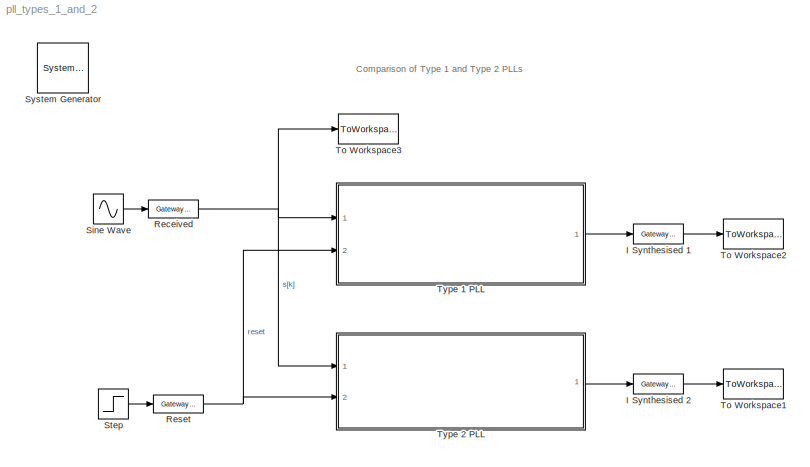
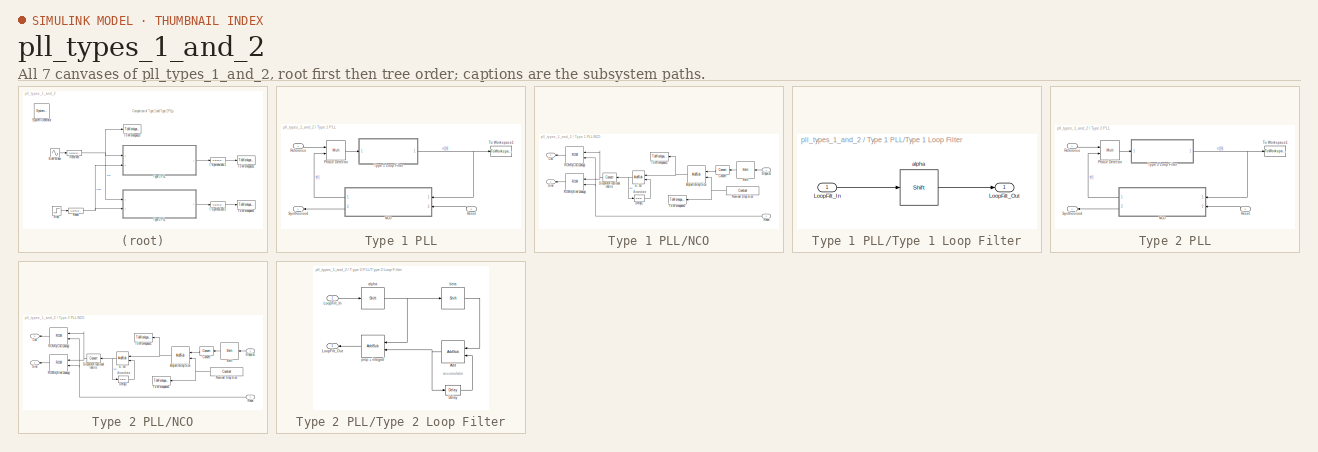
[diagram: thumbnail index - all 7 canvases of the model, root first then tree order]
MODEL pll_types_1_and_2
KIND model
CONFIG PreLoadFcn = Fs = 1000;
CONFIG StopFcn = figure(9)\nsubplot(2,1,1)\nhold off\nplot(Vss1,'r');\nhold on\nplot(Vss_nom1,'b');\nlegend('Adj. SS (Type 1)', 'Centre SS (Type 1)',1);\naxis([0 10000 35 40]);\nsubplot(2,1,2)\nhold off\nplot(Vss2,'r');\nhold on\nplot(Vss_nom2,'b');\nlegend('Adj. SS (Type 2)', 'Centre SS (Type 2)',1);\naxis([0 10000 35 40]);\n\ndoFFTplot(Fs, [Vsyn1(round(length(Vsyn1)*0.5):end), Verr1(round(length(Verr1)*0.5):end)...<+751ch>
BLOCK [Reference]  System Generator  REF=xbsIndex_r4/ System Generator
  AttributesFormatString = System\\nGenerator
  FunctionWithSeparateData = off
  Ports = []
  RTWMemSecDataConstants = Inherit from model
  RTWMemSecDataInternal = Inherit from model
  RTWMemSecDataParameters = Inherit from model
  RTWMemSecFuncExecute = Inherit from model
  RTWMemSecFuncInitTerm = Inherit from model
  ShowPortLabels = FromPortIcon
  SourceBlock = xbsIndex_r4/ System Generator
  SourceType = Xilinx System Generator Block
  SystemSampleTime = -1
  Tag = genX
  UserData = DataTag0
  UserDataPersistent = on
  block_type = sysgen
  block_version = 9.2.01
  clock_wrapper = Clock Enables
  core_generation = According to Block Masks
  dbl_ovrd = According to Block Masks
  dcm_input_clock_period = 100
  deprecated_control = off
  directory = ./netlist
  eval_field = 0
  has_advanced_control = 0
  incr_netlist = off
  infoedit = System Generator
  package = ff668
  part = xc4vsx35
  run_coregen = off
  sg_icon_stat = 51,50,-1,-1,red,beige,0,07734
  sg_mask_display = fprintf('','COMMENT: begin icon graphics');\npatch([0 51 51 0 ],[0 0 50 50 ],[0.93 0.92 0.86]);\npatch([12 4 16 4 12 25 29 33 47 36 25 17 29 17 25 36 47 33 29 25 12 ],[5 13 25 37 45 45 41 45 45 34 45 37 25 13 5 16 5 5 9 5 5 ],[0.6 0.2 0.25]);\nplot([0 0 51 51 0 ],[0 50 50 0 0 ]);\nfprintf('','COMMENT: end icon graphics');\nfprintf('','COMMENT: begin icon text');\nfprintf('','COMMENT: end icon text...<+5ch>
  sggui_pos = -1,-1,-1,-1
  simulink_period = 1/Fs
  speed = -10
  synthesis_tool = XST
  sysclk_period = 10
  testbench = off
  trim_vbits = Everywhere in SubSystem
  xilinxfamily = virtex4
BLOCK [Reference] I Synthesised 1  REF=xbsIndex_r4/Gateway Out
  LOCs = {}
  Ports = [1, 1]
  SourceBlock = xbsIndex_r4/Gateway Out
  SourceType = Xilinx Gateway Out Block
  block_type = gatewayout
  block_version = 9.2.01
  has_advanced_control = 0
  hdl_port = on
  infoedit = Gateway out block.  Converts Xilinx fixed point inputs into ouputs of type Simulink integer, double, or fixed point.<P><P>Hardware notes:  In hardware these blocks become top level output ports or are discarded, depending on how they are configured.
  locs_specified = off
  sg_icon_stat = 50,20,1,1,white,yellow,0,38220381,right
  sg_mask_display = fprintf('','COMMENT: begin icon graphics');\npatch([0 50 50 0 ],[0 0 20 20 ],[0.95 0.93 0.65]);\npatch([19 16 21 16 19 24 25 26 32 28 24 21 26 21 24 28 32 26 25 24 19 ],[2 5 10 15 18 18 17 18 18 14 18 15 10 5 2 6 2 2 3 2 2 ],[0.98 0.96 0.92]);\nplot([0 50 50 0 0 ],[0 0 20 20 0 ]);\nfprintf('','COMMENT: end icon graphics');\nfprintf('','COMMENT: begin icon text');\ncolor('black');port_label('input'...<+132ch>
  sggui_pos = 20,20,336,386
  timing_constraint = None
  xl_area = [0,0,0,0,0,0,0]
  xl_use_area = off
BLOCK [Reference] I Synthesised 2  REF=xbsIndex_r4/Gateway Out
  LOCs = {}
  Ports = [1, 1]
  SourceBlock = xbsIndex_r4/Gateway Out
  SourceType = Xilinx Gateway Out Block
  block_type = gatewayout
  block_version = 9.2.01
  has_advanced_control = 0
  hdl_port = on
  infoedit = Gateway out block.  Converts Xilinx fixed point inputs into ouputs of type Simulink integer, double, or fixed point.<P><P>Hardware notes:  In hardware these blocks become top level output ports or are discarded, depending on how they are configured.
  locs_specified = off
  sg_icon_stat = 50,20,1,1,white,yellow,0,38220381,right
  sg_mask_display = fprintf('','COMMENT: begin icon graphics');\npatch([0 50 50 0 ],[0 0 20 20 ],[0.95 0.93 0.65]);\npatch([19 16 21 16 19 24 25 26 32 28 24 21 26 21 24 28 32 26 25 24 19 ],[2 5 10 15 18 18 17 18 18 14 18 15 10 5 2 6 2 2 3 2 2 ],[0.98 0.96 0.92]);\nplot([0 50 50 0 0 ],[0 0 20 20 0 ]);\nfprintf('','COMMENT: end icon graphics');\nfprintf('','COMMENT: begin icon text');\ncolor('black');port_label('input'...<+132ch>
  sggui_pos = 20,20,336,386
  timing_constraint = None
  xl_area = [0,0,0,0,0,0,0]
  xl_use_area = off
BLOCK [Reference] Received  REF=xbsIndex_r4/Gateway In
  LOCs = {}
  Ports = [1, 1]
  SourceBlock = xbsIndex_r4/Gateway In
  SourceType = Xilinx Gateway In Block
  arith_type = Signed  (2's comp)
  bin_pt = 14
  block_type = gatewayin
  block_version = 9.2.01
  dbl_ovrd = off
  has_advanced_control = 0
  infoedit = Gateway in block.  Converts inputs of type Simulink integer, double and fixed point to  Xilinx fixed point type.<P><P>Hardware notes:  In hardware these blocks become top level input ports.
  locs_specified = off
  n_bits = 16
  overflow = Saturate
  period = 1/Fs
  quantization = Round  (unbiased: +/- Inf)
  sg_icon_stat = 50,18,1,1,white,yellow,0,bc55d28f,right
  sg_mask_display = fprintf('','COMMENT: begin icon graphics');\npatch([0 65 65 0 ],[0 0 20 20 ],[0.95 0.93 0.65]);\npatch([27 24 29 24 27 32 33 34 40 36 32 29 34 29 32 36 40 34 33 32 27 ],[2 5 10 15 18 18 17 18 18 14 18 15 10 5 2 6 2 2 3 2 2 ],[0.98 0.96 0.92]);\nplot([0 65 65 0 0 ],[0 0 20 20 0 ]);\nfprintf('','COMMENT: end icon graphics');\nfprintf('','COMMENT: begin icon text');\ncolor('black');port_label('input'...<+131ch>
  sggui_pos = 20,20,348,406
  timing_constraint = None
  xl_area = [0,0,0,0,0,0,0]
  xl_use_area = off
BLOCK [Reference] Reset  REF=xbsIndex_r4/Gateway In
  LOCs = {}
  Ports = [1, 1]
  SourceBlock = xbsIndex_r4/Gateway In
  SourceType = Xilinx Gateway In Block
  arith_type = Boolean
  bin_pt = 14
  block_type = gatewayin
  block_version = 9.2.01
  dbl_ovrd = off
  has_advanced_control = 0
  infoedit = Gateway in block.  Converts inputs of type Simulink integer, double and fixed point to  Xilinx fixed point type.<P><P>Hardware notes:  In hardware these blocks become top level input ports.
  locs_specified = off
  n_bits = 16
  overflow = Saturate
  period = 1/Fs
  quantization = Round  (unbiased: +/- Inf)
  sg_icon_stat = 50,18,1,1,white,yellow,0,bc55d28f,right
  sg_mask_display = fprintf('','COMMENT: begin icon graphics');\npatch([0 65 65 0 ],[0 0 20 20 ],[0.95 0.93 0.65]);\npatch([27 24 29 24 27 32 33 34 40 36 32 29 34 29 32 36 40 34 33 32 27 ],[2 5 10 15 18 18 17 18 18 14 18 15 10 5 2 6 2 2 3 2 2 ],[0.98 0.96 0.92]);\nplot([0 65 65 0 0 ],[0 0 20 20 0 ]);\nfprintf('','COMMENT: end icon graphics');\nfprintf('','COMMENT: begin icon text');\ncolor('black');port_label('input'...<+131ch>
  sggui_pos = 20,20,348,406
  timing_constraint = None
  xl_area = [0,0,0,0,0,0,0]
  xl_use_area = off
BLOCK [Sin] Sine Wave
  Frequency = 2*pi*37
  Phase = 0.69
  Ports = [0, 1]
  SampleTime = 1/Fs
  SineType = Time based
BLOCK [Step] Step
  After = 0
  Before = 1
  SampleTime = 1/1000
  Time = 0.1
BLOCK [ToWorkspace] To Workspace1
  MaxDataPoints = inf
  SampleTime = -1
  SaveFormat = Array
  VariableName = Vsyn2
BLOCK [ToWorkspace] To Workspace2
  MaxDataPoints = inf
  SampleTime = -1
  SaveFormat = Array
  VariableName = Vsyn1
BLOCK [ToWorkspace] To Workspace3
  MaxDataPoints = inf
  SampleTime = -1
  SaveFormat = Array
  VariableName = Vref
BLOCK [SubSystem] Type 1 PLL
  FunctionWithSeparateData = off
  MaskHideContents = off
  MinAlgLoopOccurrences = off
  Ports = [2, 1]
  RTWSystemCode = Auto
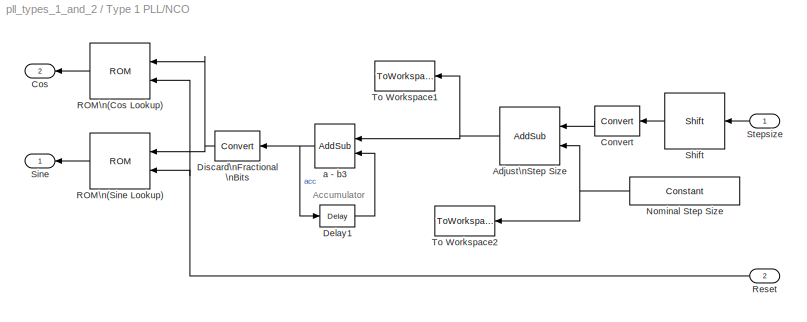
BLOCK [SubSystem] Type 1 PLL/NCO
  FunctionWithSeparateData = off
  MaskCallbackString = ||||
  MaskDescription = When specifying the resolution, ensure that the required number of fractional bits are available on the input data path (which provides the step size). Otherwise, the level of frequency resolution stated on the NCO block will not be realised.
  MaskDisplay = fprintf(['Actual Frequency Resolution = ', num2str(F_res_act), 'Hz\\n Whole Bits = ', num2str(whole_bits), '\\n Fractional Bits = ', num2str(fract_bits)],'texmode','on');
  MaskEnableString = on,on,on,on,on
  MaskHideContents = off
  MaskIconFrame = on
  MaskIconOpaque = on
  MaskIconRotate = none
  MaskIconUnits = autoscale
  MaskInitialization = delta_mu_des = (F_res * N) / F_s;\nfract_bits = ceil(abs((log(delta_mu_des) / log(2))));\nwhole_bits = round(log(N)/log(2));\nmu_nom = (F_nom * N) / F_s;\nF_res_act = F_s / ((2^fract_bits) * N);\n
  MaskPromptString = Lookup Table size, N (where N = 2^n)|Lookup Table output wordlength|Desired Frequency Resolution (Hz)|Desired Nominal frequency (Hz)|Sampling frequency (Hz)
  MaskStyleString = edit,edit,edit,edit,edit
  MaskTabNameString = ,,,,
  MaskToolTipString = on,on,on,on,on
  MaskTunableValueString = on,on,on,on,on
  MaskType = Numerically Controlled Oscillator
  MaskValueString = 1024|16|0.00001|36.7|Fs
  MaskVarAliasString = ,,,,
  MaskVariables = N=@1;LUT_w=@2;F_res=@3;F_nom=@4;F_s=@5;
  MaskVisibilityString = on,on,on,on,on
  MinAlgLoopOccurrences = off
  Ports = [2, 2]
  RTWSystemCode = Auto
BLOCK [Reference] Type 1 PLL/NCO/Adjust\nStep Size  REF=xbsIndex_r4/AddSub
  Ports = [2, 1]
  SourceBlock = xbsIndex_r4/AddSub
  SourceType = Xilinx Adder/Subtractor Block
  arith_type = Unsigned
  bin_pt = fract_bits
  block_type = addsub
  block_version = 9.2.01
  dbl_ovrd = off
  en = off
  has_advanced_control = 0
  latency = 0
  mode = Addition
  n_bits = whole_bits + fract_bits
  overflow = Wrap
  pipelined = off
  precision = User Defined
  quantization = Round  (unbiased: +/- Inf)
  sg_icon_stat = 60,58,1,1,white,blue,0,36a47907,right
  sg_mask_display = fprintf('','COMMENT: begin icon graphics');\npatch([0 60 60 0 ],[0 0 58 58 ],[0.77 0.82 0.91]);\npatch([15 5 19 5 15 30 34 38 54 41 29 20 34 20 29 41 54 38 34 30 15 ],[6 16 30 44 54 54 50 54 54 41 53 44 30 16 7 19 6 6 10 6 6 ],[0.98 0.96 0.92]);\nplot([0 60 60 0 0 ],[0 0 58 58 0 ]);\nfprintf('','COMMENT: end icon graphics');\nfprintf('','COMMENT: begin icon text');\ncolor('black');port_label('inpu...<+163ch>  <repeated x6 — deduplicated; at blocks: Adjust\nStep Size, a - b3, Add, prop + integral>
  sggui_pos = 20,20,348,307
  use_behavioral_HDL = off
  use_carryin = off
  use_carryout = off
  use_rpm = on
  xl_area = [0,0,0,0,0,0,0]
  xl_use_area = off
BLOCK [Reference] Type 1 PLL/NCO/Convert  REF=xbsIndex_r4/Convert
  Ports = [1, 1]
  SourceBlock = xbsIndex_r4/Convert
  SourceType = Xilinx Type Converter Block
  arith_type = Signed  (2's comp)
  bin_pt = fract_bits
  block_type = convert
  block_version = 9.2.01
  dbl_ovrd = off
  has_advanced_control = 0
  infoedit = Hardware notes: rounding and saturating require hardware resources; truncating and wrapping do not.
  latency = 0
  n_bits = whole_bits+fract_bits
  overflow = Wrap
  pipeline = off
  quantization = Truncate
  sg_icon_stat = 45,30,1,1,white,blue,0,74901e60,right
  sg_mask_display = fprintf('','COMMENT: begin icon graphics');\npatch([0 45 45 0 ],[0 0 30 30 ],[0.77 0.82 0.91]);\npatch([15 10 17 10 15 23 25 27 35 28 22 17 23 17 22 28 35 27 25 23 15 ],[3 8 15 22 27 27 25 27 27 20 26 21 15 9 4 10 3 3 5 3 3 ],[0.98 0.96 0.92]);\nplot([0 45 45 0 0 ],[0 0 30 30 0 ]);\nfprintf('','COMMENT: end icon graphics');\nfprintf('','COMMENT: begin icon text');\ncolor('black');port_label('outpu...<+54ch>  <repeated x4 — deduplicated; at blocks: Convert, Discard\nFractional\nBits>
  sggui_pos = 20,20,461,334
  xl_area = [0,0,0,0,0,0,0]
  xl_use_area = off
BLOCK [Outport] Type 1 PLL/NCO/Cos
  BusOutputAsStruct = off
  IconDisplay = Port number
  Port = 2
BLOCK [Reference] Type 1 PLL/NCO/Delay1  REF=xbsIndex_r4/Delay
  Ports = [1, 1]
  SourceBlock = xbsIndex_r4/Delay
  SourceType = Xilinx Delay Block
  block_type = delay
  block_version = 9.2.01
  dbl_ovrd = off
  en = off
  has_advanced_control = 0
  infoedit = Hardware notes: A delay line is a chain, each link of which is an SRL16 followed by a flip-flop.
  latency = 1
  reg_retiming = off
  sg_icon_stat = 35,22,1,1,white,blue,0,fc531c0e,right
  sg_mask_display = fprintf('','COMMENT: begin icon graphics');\npatch([0 60 60 0 ],[0 0 56 56 ],[0.77 0.82 0.91]);\npatch([15 6 19 6 15 30 34 38 54 41 29 20 32 20 29 41 54 38 34 30 15 ],[6 15 28 41 50 50 46 50 50 37 49 40 28 16 7 19 6 6 10 6 6 ],[0.98 0.96 0.92]);\nplot([0 60 60 0 0 ],[0 0 56 56 0 ]);\nfprintf('','COMMENT: end icon graphics');\nfprintf('','COMMENT: begin icon text');\ncolor('black');disp('z^{-1}','t...<+55ch>  <repeated x3 — deduplicated; at blocks: Delay1, Delay>
  sggui_pos = 20,20,348,255
  xl_area = [0,0,0,0,0,0,0]
  xl_use_area = off
BLOCK [Reference] Type 1 PLL/NCO/Discard\nFractional\nBits  REF=xbsIndex_r4/Convert
  Ports = [1, 1]
  SourceBlock = xbsIndex_r4/Convert
  SourceType = Xilinx Type Converter Block
  arith_type = Unsigned
  bin_pt = 0
  block_type = convert
  block_version = 9.2.01
  dbl_ovrd = off
  has_advanced_control = 0
  infoedit = Hardware notes: rounding and saturating require hardware resources; truncating and wrapping do not.
  latency = 0
  n_bits = whole_bits
  overflow = Wrap
  pipeline = off
  quantization = Truncate
  sg_icon_stat = 45,30,1,1,white,blue,0,74901e60,right
  sggui_pos = 20,20,461,334
  xl_area = [0,0,0,0,0,0,0]
  xl_use_area = off
BLOCK [Reference] Type 1 PLL/NCO/Nominal Step Size  REF=xbsIndex_r4/Constant
  Ports = [0, 1]
  SourceBlock = xbsIndex_r4/Constant
  SourceType = Xilinx Constant Block Block
  arith_type = Unsigned
  bin_pt = fract_bits
  block_type = constant
  block_version = 9.2.01
  carry = CIN
  const = mu_nom
  dbl_ovrd = off
  dsp48_infoedit = The use of this block for DSP48 instructions is deprecated.  Please use the Opmode block.
  equ = P=C
  explicit_period = on
  has_advanced_control = 0
  inp1 = P
  inp2 = PCIN>>17
  n_bits = whole_bits + fract_bits
  opr = +
  opselect = C
  period = 1/Fs
  sg_icon_stat = 110,28,1,1,white,blue,0,9b7ca718,right
  sg_mask_display = fprintf('','COMMENT: begin icon graphics');\npatch([0 55 55 0 ],[0 0 26 26 ],[0.77 0.82 0.91]);\npatch([20 16 22 16 20 27 29 31 38 32 26 22 28 22 26 32 38 31 29 27 20 ],[3 7 13 19 23 23 21 23 23 17 23 19 13 7 3 9 3 3 5 3 3 ],[0.98 0.96 0.92]);\nplot([0 55 55 0 0 ],[0 0 26 26 0 ]);\nfprintf('','COMMENT: end icon graphics');\nfprintf('','COMMENT: begin icon text');\ncolor('black');port_label('output...<+66ch>
  sggui_pos = 20,20,400,346
BLOCK [Reference] Type 1 PLL/NCO/ROM\n(Cos Lookup)  REF=xbsIndex_r4/ROM
  Ports = [2, 1]
  SourceBlock = xbsIndex_r4/ROM
  SourceType = Xilinx Single Port Read-Only Memory Block
  arith_type = Signed  (2's comp)
  bin_pt = LUT_w - 2
  block_type = sprom
  block_version = 9.2.01
  dbl_ovrd = off
  depth = N
  distributed_mem = Block RAM
  en = off
  has_advanced_control = 0
  initVector = -cos(pi*(0:(N-1))/(N/2))
  init_reg = 1
  latency = 1
  n_bits = LUT_w
  optimize = Area
  rst = on
  sg_icon_stat = 60,56,1,1,white,blue,0,d0f12e4a,right
  sg_mask_display = fprintf('','COMMENT: begin icon graphics');\npatch([0 60 60 0 ],[0 0 56 56 ],[0.77 0.82 0.91]);\npatch([15 6 19 6 15 30 34 38 54 41 29 20 32 20 29 41 54 38 34 30 15 ],[6 15 28 41 50 50 46 50 50 37 49 40 28 16 7 19 6 6 10 6 6 ],[0.98 0.96 0.92]);\nplot([0 60 60 0 0 ],[0 0 56 56 0 ]);\nfprintf('','COMMENT: end icon graphics');\nfprintf('','COMMENT: begin icon text');\ncolor('black');port_label('inpu...<+146ch>  <repeated x4 — deduplicated; at blocks: ROM\n(Cos Lookup), ROM\n(Sine Lookup)>
  sggui_pos = 20,20,348,308
  use_rpm = on
  xl_area = [0,0,0,0,0,0,0]
  xl_use_area = off
BLOCK [Reference] Type 1 PLL/NCO/ROM\n(Sine Lookup)  REF=xbsIndex_r4/ROM
  Ports = [2, 1]
  SourceBlock = xbsIndex_r4/ROM
  SourceType = Xilinx Single Port Read-Only Memory Block
  arith_type = Signed  (2's comp)
  bin_pt = LUT_w - 2
  block_type = sprom
  block_version = 9.2.01
  dbl_ovrd = off
  depth = N
  distributed_mem = Block RAM
  en = off
  has_advanced_control = 0
  initVector = sin(pi*(0:(N-1))/(N/2))
  init_reg = 1
  latency = 1
  n_bits = LUT_w
  optimize = Area
  rst = on
  sg_icon_stat = 60,56,1,1,white,blue,0,d0f12e4a,right
  sggui_pos = 20,20,348,308
  use_rpm = on
  xl_area = [0,0,0,0,0,0,0]
  xl_use_area = off
BLOCK [Inport] Type 1 PLL/NCO/Reset
  IconDisplay = Port number
  Port = 2
BLOCK [Reference] Type 1 PLL/NCO/Shift  REF=xbsIndex_r4/Shift
  Ports = [1, 1]
  SourceBlock = xbsIndex_r4/Shift
  SourceType = Xilinx Binary Shift Operator Block
  arith_type = Signed  (2's comp)
  bin_pt = 14
  block_type = shift
  block_version = 9.2.01
  dbl_ovrd = off
  en = off
  has_advanced_control = 0
  infoedit = Hardware notes: In hardware this block costs nothing if full output precision is used.
  latency = 0
  n_bits = 16
  overflow = Wrap
  precision = Full
  quantization = Truncate
  sg_icon_stat = 60,56,1,1,white,blue,0,61e40a9e,right
  sg_mask_display = fprintf('','COMMENT: begin icon graphics');\npatch([0 60 60 0 ],[0 0 56 56 ],[0.77 0.82 0.91]);\npatch([15 6 19 6 15 30 34 38 54 41 29 20 32 20 29 41 54 38 34 30 15 ],[6 15 28 41 50 50 46 50 50 37 49 40 28 16 7 19 6 6 10 6 6 ],[0.98 0.96 0.92]);\nplot([0 60 60 0 0 ],[0 0 56 56 0 ]);\nfprintf('','COMMENT: end icon graphics');\nfprintf('','COMMENT: begin icon text');\ncolor('black');disp('\\newline\...<+85ch>  <repeated x5 — deduplicated; at blocks: Shift, alpha, beta>
  sggui_pos = 20,20,348,345
  shift_bits = 4
  shift_dir = Left
  xl_area = [0,0,0,0,0,0,0]
  xl_use_area = off
BLOCK [Outport] Type 1 PLL/NCO/Sine
  BusOutputAsStruct = off
  IconDisplay = Port number
BLOCK [Inport] Type 1 PLL/NCO/Stepsize
  IconDisplay = Port number
BLOCK [ToWorkspace] Type 1 PLL/NCO/To Workspace1
  MaxDataPoints = inf
  SampleTime = -1
  SaveFormat = Array
  VariableName = Vss1
BLOCK [ToWorkspace] Type 1 PLL/NCO/To Workspace2
  MaxDataPoints = inf
  SampleTime = -1
  SaveFormat = Array
  VariableName = Vss_nom1
BLOCK [Reference] Type 1 PLL/NCO/a - b3  REF=xbsIndex_r4/AddSub
  Ports = [2, 1]
  SourceBlock = xbsIndex_r4/AddSub
  SourceType = Xilinx Adder/Subtractor Block
  arith_type = Unsigned
  bin_pt = fract_bits
  block_type = addsub
  block_version = 9.2.01
  dbl_ovrd = off
  en = off
  has_advanced_control = 0
  latency = 0
  mode = Addition
  n_bits = whole_bits + fract_bits
  overflow = Wrap
  pipelined = off
  precision = User Defined
  quantization = Truncate
  sg_icon_stat = 40,44,1,1,white,blue,0,36a47907,right
  sggui_pos = 20,20,348,307
  use_behavioral_HDL = off
  use_carryin = off
  use_carryout = off
  use_rpm = on
  xl_area = [0,0,0,0,0,0,0]
  xl_use_area = off
BLOCK [Reference] Type 1 PLL/Phase Detector  REF=xbsIndex_r4/Mult
  Ports = [2, 1]
  SourceBlock = xbsIndex_r4/Mult
  SourceType = Xilinx Multiplier Block
  arith_type = Signed  (2's comp)
  bin_pt = 14
  block_type = mult
  block_version = 9.2.01
  dbl_ovrd = off
  en = off
  has_advanced_control = 0
  infoedit = Hardware notes: To use the internal pipeline stage of the dedicated multiplier you must select 'Pipeline for maximum performance'.
  latency = 0
  n_bits = 16
  opt = Speed
  optimum_pipeline = off
  overflow = Wrap
  pipeline = on
  placement_style = Triangular
  precision = Full
  quantization = Truncate
  sg_icon_stat = 55,55,1,1,white,blue,0,dd5fccf4,right
  sg_mask_display = fprintf('','COMMENT: begin icon graphics');\npatch([0 55 55 0 ],[0 0 55 55 ],[0.77 0.82 0.91]);\npatch([13 4 17 4 13 28 32 36 52 40 28 19 32 19 28 40 52 36 32 28 13 ],[6 15 28 41 50 50 46 50 50 38 50 41 28 15 6 18 6 6 10 6 6 ],[0.98 0.96 0.92]);\nplot([0 55 55 0 0 ],[0 0 55 55 0 ]);\nfprintf('','COMMENT: end icon graphics');\nfprintf('','COMMENT: begin icon text');\ncolor('black');port_label('inpu...<+212ch>
  sggui_pos = 20,20,367,433
  use_behavioral_HDL = off
  use_embedded = on
  use_rpm = on
  xl_area = [0,0,0,0,0,0,0]
  xl_use_area = off
BLOCK [Inport] Type 1 PLL/Reference
  IconDisplay = Port number
BLOCK [Inport] Type 1 PLL/Reset
  IconDisplay = Port number
  Port = 2
BLOCK [Outport] Type 1 PLL/Synthesised
  BusOutputAsStruct = off
  IconDisplay = Port number
BLOCK [ToWorkspace] Type 1 PLL/To Workspace1
  MaxDataPoints = inf
  SampleTime = -1
  SaveFormat = Array
  VariableName = Verr1
BLOCK [SubSystem] Type 1 PLL/Type 1 Loop Filter
  FunctionWithSeparateData = off
  MaskCallbackString = |
  MaskDescription = The first order loop filter contains a proportional path only, with coefficient Alpha. This constant multiplication is implemented as a shift, with the wordlength at the output of the shift extended by the degree of the shift.
  MaskEnableString = on,on
  MaskHideContents = off
  MaskIconFrame = on
  MaskIconOpaque = on
  MaskIconRotate = none
  MaskIconUnits = autoscale
  MaskInitialization = alpha_shift_wl = phase_det_word + alpha_n;\n\n
  MaskPromptString = Alpha (bits to shift right by)|Input wordlength
  MaskStyleString = edit,edit
  MaskTabNameString = ,
  MaskToolTipString = on,on
  MaskTunableValueString = on,on
  MaskType = Loop Filter Parameters
  MaskValueString = 3|32
  MaskVarAliasString = ,
  MaskVariables = alpha_n=@1;phase_det_word=@2;
  MaskVisibilityString = on,on
  MinAlgLoopOccurrences = off
  Ports = [1, 1]
  RTWSystemCode = Auto
BLOCK [Inport] Type 1 PLL/Type 1 Loop Filter/LoopFilt_In
  IconDisplay = Port number
BLOCK [Outport] Type 1 PLL/Type 1 Loop Filter/LoopFilt_Out
  BusOutputAsStruct = off
  IconDisplay = Port number
BLOCK [Reference] Type 1 PLL/Type 1 Loop Filter/alpha  REF=xbsIndex_r4/Shift
  Ports = [1, 1]
  SourceBlock = xbsIndex_r4/Shift
  SourceType = Xilinx Binary Shift Operator Block
  arith_type = Signed  (2's comp)
  bin_pt = alpha_shift_wl-2
  block_type = shift
  block_version = 9.2.01
  dbl_ovrd = off
  en = off
  has_advanced_control = 0
  infoedit = Hardware notes: In hardware this block costs nothing if full output precision is used.
  latency = 0
  n_bits = alpha_shift_wl
  overflow = Wrap
  precision = User Defined
  quantization = Truncate
  sg_icon_stat = 60,56,1,1,white,blue,0,95b928d4,right
  sggui_pos = 20,20,348,345
  shift_bits = alpha_n
  shift_dir = Right
  xl_area = [0,0,0,0,0,0,0]
  xl_use_area = off
BLOCK [SubSystem] Type 2 PLL
  FunctionWithSeparateData = off
  MaskHideContents = off
  MinAlgLoopOccurrences = off
  Ports = [2, 1]
  RTWSystemCode = Auto
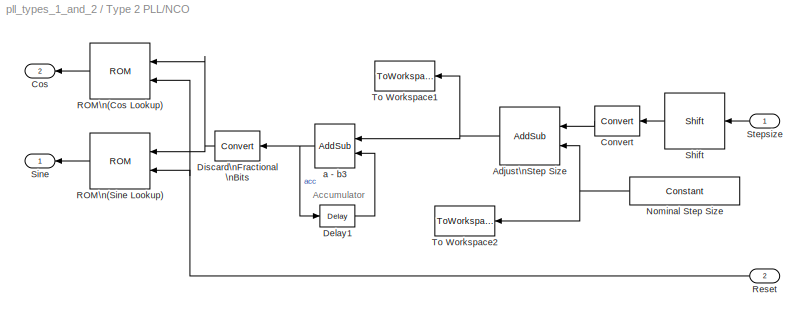
BLOCK [SubSystem] Type 2 PLL/NCO
  FunctionWithSeparateData = off
  MaskCallbackString = ||||
  MaskDescription = When specifying the resolution, ensure that the required number of fractional bits are available on the input data path (which provides the step size). Otherwise, the level of frequency resolution stated on the NCO block will not be realised.
  MaskDisplay = fprintf(['Actual Frequency Resolution = ', num2str(F_res_act), 'Hz\\n Whole Bits = ', num2str(whole_bits), '\\n Fractional Bits = ', num2str(fract_bits)],'texmode','on');
  MaskEnableString = on,on,on,on,on
  MaskHideContents = off
  MaskIconFrame = on
  MaskIconOpaque = on
  MaskIconRotate = none
  MaskIconUnits = autoscale
  MaskInitialization = delta_mu_des = (F_res * N) / F_s;\nfract_bits = ceil(abs((log(delta_mu_des) / log(2))));\nwhole_bits = round(log(N)/log(2));\nmu_nom = (F_nom * N) / F_s;\nF_res_act = F_s / ((2^fract_bits) * N);\n
  MaskPromptString = Lookup Table size, N (where N = 2^n)|Lookup Table output wordlength|Desired Frequency Resolution (Hz)|Desired Nominal frequency (Hz)|Sampling frequency (Hz)
  MaskStyleString = edit,edit,edit,edit,edit
  MaskTabNameString = ,,,,
  MaskToolTipString = on,on,on,on,on
  MaskTunableValueString = on,on,on,on,on
  MaskType = Numerically Controlled Oscillator
  MaskValueString = 1024|16|0.00001|36.7|Fs
  MaskVarAliasString = ,,,,
  MaskVariables = N=@1;LUT_w=@2;F_res=@3;F_nom=@4;F_s=@5;
  MaskVisibilityString = on,on,on,on,on
  MinAlgLoopOccurrences = off
  Ports = [2, 2]
  RTWSystemCode = Auto
BLOCK [Reference] Type 2 PLL/NCO/Adjust\nStep Size  REF=xbsIndex_r4/AddSub
  Ports = [2, 1]
  SourceBlock = xbsIndex_r4/AddSub
  SourceType = Xilinx Adder/Subtractor Block
  arith_type = Unsigned
  bin_pt = fract_bits
  block_type = addsub
  block_version = 9.2.01
  dbl_ovrd = off
  en = off
  has_advanced_control = 0
  latency = 0
  mode = Addition
  n_bits = whole_bits + fract_bits
  overflow = Wrap
  pipelined = off
  precision = User Defined
  quantization = Round  (unbiased: +/- Inf)
  sg_icon_stat = 60,58,1,1,white,blue,0,36a47907,right
  sggui_pos = 20,20,348,307
  use_behavioral_HDL = off
  use_carryin = off
  use_carryout = off
  use_rpm = on
  xl_area = [0,0,0,0,0,0,0]
  xl_use_area = off
BLOCK [Reference] Type 2 PLL/NCO/Convert  REF=xbsIndex_r4/Convert
  Ports = [1, 1]
  SourceBlock = xbsIndex_r4/Convert
  SourceType = Xilinx Type Converter Block
  arith_type = Signed  (2's comp)
  bin_pt = fract_bits
  block_type = convert
  block_version = 9.2.01
  dbl_ovrd = off
  has_advanced_control = 0
  infoedit = Hardware notes: rounding and saturating require hardware resources; truncating and wrapping do not.
  latency = 0
  n_bits = whole_bits+fract_bits
  overflow = Wrap
  pipeline = off
  quantization = Truncate
  sg_icon_stat = 45,30,1,1,white,blue,0,74901e60,right
  sggui_pos = 20,20,461,334
  xl_area = [0,0,0,0,0,0,0]
  xl_use_area = off
BLOCK [Outport] Type 2 PLL/NCO/Cos
  BusOutputAsStruct = off
  IconDisplay = Port number
  Port = 2
BLOCK [Reference] Type 2 PLL/NCO/Delay1  REF=xbsIndex_r4/Delay
  Ports = [1, 1]
  SourceBlock = xbsIndex_r4/Delay
  SourceType = Xilinx Delay Block
  block_type = delay
  block_version = 9.2.01
  dbl_ovrd = off
  en = off
  has_advanced_control = 0
  infoedit = Hardware notes: A delay line is a chain, each link of which is an SRL16 followed by a flip-flop.
  latency = 1
  reg_retiming = off
  sg_icon_stat = 35,22,1,1,white,blue,0,fc531c0e,right
  sggui_pos = 20,20,348,255
  xl_area = [0,0,0,0,0,0,0]
  xl_use_area = off
BLOCK [Reference] Type 2 PLL/NCO/Discard\nFractional\nBits  REF=xbsIndex_r4/Convert
  Ports = [1, 1]
  SourceBlock = xbsIndex_r4/Convert
  SourceType = Xilinx Type Converter Block
  arith_type = Unsigned
  bin_pt = 0
  block_type = convert
  block_version = 9.2.01
  dbl_ovrd = off
  has_advanced_control = 0
  infoedit = Hardware notes: rounding and saturating require hardware resources; truncating and wrapping do not.
  latency = 0
  n_bits = whole_bits
  overflow = Wrap
  pipeline = off
  quantization = Truncate
  sg_icon_stat = 45,30,1,1,white,blue,0,74901e60,right
  sggui_pos = 20,20,461,334
  xl_area = [0,0,0,0,0,0,0]
  xl_use_area = off
BLOCK [Reference] Type 2 PLL/NCO/Nominal Step Size  REF=xbsIndex_r4/Constant
  Ports = [0, 1]
  SourceBlock = xbsIndex_r4/Constant
  SourceType = Xilinx Constant Block Block
  arith_type = Unsigned
  bin_pt = fract_bits
  block_type = constant
  block_version = 9.2.01
  carry = CIN
  const = mu_nom
  dbl_ovrd = off
  dsp48_infoedit = The use of this block for DSP48 instructions is deprecated.  Please use the Opmode block.
  equ = P=C
  explicit_period = on
  has_advanced_control = 0
  inp1 = P
  inp2 = PCIN>>17
  n_bits = whole_bits + fract_bits
  opr = +
  opselect = C
  period = 1/Fs
  sg_icon_stat = 110,28,1,1,white,blue,0,9b7ca718,right
  sg_mask_display = fprintf('','COMMENT: begin icon graphics');\npatch([0 55 55 0 ],[0 0 26 26 ],[0.77 0.82 0.91]);\npatch([20 16 22 16 20 27 29 31 38 32 26 22 28 22 26 32 38 31 29 27 20 ],[3 7 13 19 23 23 21 23 23 17 23 19 13 7 3 9 3 3 5 3 3 ],[0.98 0.96 0.92]);\nplot([0 55 55 0 0 ],[0 0 26 26 0 ]);\nfprintf('','COMMENT: end icon graphics');\nfprintf('','COMMENT: begin icon text');\ncolor('black');port_label('output...<+66ch>
  sggui_pos = 20,20,400,346
BLOCK [Reference] Type 2 PLL/NCO/ROM\n(Cos Lookup)  REF=xbsIndex_r4/ROM
  Ports = [2, 1]
  SourceBlock = xbsIndex_r4/ROM
  SourceType = Xilinx Single Port Read-Only Memory Block
  arith_type = Signed  (2's comp)
  bin_pt = LUT_w - 2
  block_type = sprom
  block_version = 9.2.01
  dbl_ovrd = off
  depth = N
  distributed_mem = Block RAM
  en = off
  has_advanced_control = 0
  initVector = -cos(pi*(0:(N-1))/(N/2))
  init_reg = 1
  latency = 1
  n_bits = LUT_w
  optimize = Area
  rst = on
  sg_icon_stat = 60,56,1,1,white,blue,0,d0f12e4a,right
  sggui_pos = 20,20,348,308
  use_rpm = on
  xl_area = [0,0,0,0,0,0,0]
  xl_use_area = off
BLOCK [Reference] Type 2 PLL/NCO/ROM\n(Sine Lookup)  REF=xbsIndex_r4/ROM
  Ports = [2, 1]
  SourceBlock = xbsIndex_r4/ROM
  SourceType = Xilinx Single Port Read-Only Memory Block
  arith_type = Signed  (2's comp)
  bin_pt = LUT_w - 2
  block_type = sprom
  block_version = 9.2.01
  dbl_ovrd = off
  depth = N
  distributed_mem = Block RAM
  en = off
  has_advanced_control = 0
  initVector = sin(pi*(0:(N-1))/(N/2))
  init_reg = 1
  latency = 1
  n_bits = LUT_w
  optimize = Area
  rst = on
  sg_icon_stat = 60,56,1,1,white,blue,0,d0f12e4a,right
  sggui_pos = 20,20,348,308
  use_rpm = on
  xl_area = [0,0,0,0,0,0,0]
  xl_use_area = off
BLOCK [Inport] Type 2 PLL/NCO/Reset
  IconDisplay = Port number
  Port = 2
BLOCK [Reference] Type 2 PLL/NCO/Shift  REF=xbsIndex_r4/Shift
  Ports = [1, 1]
  SourceBlock = xbsIndex_r4/Shift
  SourceType = Xilinx Binary Shift Operator Block
  arith_type = Signed  (2's comp)
  bin_pt = 14
  block_type = shift
  block_version = 9.2.01
  dbl_ovrd = off
  en = off
  has_advanced_control = 0
  infoedit = Hardware notes: In hardware this block costs nothing if full output precision is used.
  latency = 0
  n_bits = 16
  overflow = Wrap
  precision = Full
  quantization = Truncate
  sg_icon_stat = 60,56,1,1,white,blue,0,61e40a9e,right
  sggui_pos = 20,20,348,345
  shift_bits = 4
  shift_dir = Left
  xl_area = [0,0,0,0,0,0,0]
  xl_use_area = off
BLOCK [Outport] Type 2 PLL/NCO/Sine
  BusOutputAsStruct = off
  IconDisplay = Port number
BLOCK [Inport] Type 2 PLL/NCO/Stepsize
  IconDisplay = Port number
BLOCK [ToWorkspace] Type 2 PLL/NCO/To Workspace1
  MaxDataPoints = inf
  SampleTime = -1
  SaveFormat = Array
  VariableName = Vss2
BLOCK [ToWorkspace] Type 2 PLL/NCO/To Workspace2
  MaxDataPoints = inf
  SampleTime = -1
  SaveFormat = Array
  VariableName = Vss_nom2
BLOCK [Reference] Type 2 PLL/NCO/a - b3  REF=xbsIndex_r4/AddSub
  Ports = [2, 1]
  SourceBlock = xbsIndex_r4/AddSub
  SourceType = Xilinx Adder/Subtractor Block
  arith_type = Unsigned
  bin_pt = fract_bits
  block_type = addsub
  block_version = 9.2.01
  dbl_ovrd = off
  en = off
  has_advanced_control = 0
  latency = 0
  mode = Addition
  n_bits = whole_bits + fract_bits
  overflow = Wrap
  pipelined = off
  precision = User Defined
  quantization = Truncate
  sg_icon_stat = 40,44,1,1,white,blue,0,36a47907,right
  sggui_pos = 20,20,348,307
  use_behavioral_HDL = off
  use_carryin = off
  use_carryout = off
  use_rpm = on
  xl_area = [0,0,0,0,0,0,0]
  xl_use_area = off
BLOCK [Reference] Type 2 PLL/Phase Detector  REF=xbsIndex_r4/Mult
  Ports = [2, 1]
  SourceBlock = xbsIndex_r4/Mult
  SourceType = Xilinx Multiplier Block
  arith_type = Signed  (2's comp)
  bin_pt = 14
  block_type = mult
  block_version = 9.2.01
  dbl_ovrd = off
  en = off
  has_advanced_control = 0
  infoedit = Hardware notes: To use the internal pipeline stage of the dedicated multiplier you must select 'Pipeline for maximum performance'.
  latency = 0
  n_bits = 16
  opt = Speed
  optimum_pipeline = off
  overflow = Wrap
  pipeline = on
  placement_style = Triangular
  precision = Full
  quantization = Truncate
  sg_icon_stat = 55,55,2,1,white,blue,0,dd5fccf4,right
  sg_mask_display = fprintf('','COMMENT: begin icon graphics');\npatch([0 55 55 0 ],[0 0 55 55 ],[0.77 0.82 0.91]);\npatch([13 4 17 4 13 28 32 36 52 40 28 19 32 19 28 40 52 36 32 28 13 ],[6 15 28 41 50 50 46 50 50 38 50 41 28 15 6 18 6 6 10 6 6 ],[0.98 0.96 0.92]);\nplot([0 55 55 0 0 ],[0 0 55 55 0 ]);\nfprintf('','COMMENT: end icon graphics');\nfprintf('','COMMENT: begin icon text');\ncolor('black');port_label('inpu...<+212ch>
  sggui_pos = 20,20,367,433
  use_behavioral_HDL = off
  use_embedded = on
  use_rpm = on
  xl_area = [0,0,0,0,0,0,0]
  xl_use_area = off
BLOCK [Inport] Type 2 PLL/Reference
  IconDisplay = Port number
BLOCK [Inport] Type 2 PLL/Reset
  IconDisplay = Port number
  Port = 2
BLOCK [Outport] Type 2 PLL/Synthesised
  BusOutputAsStruct = off
  IconDisplay = Port number
BLOCK [ToWorkspace] Type 2 PLL/To Workspace1
  MaxDataPoints = inf
  SampleTime = -1
  SaveFormat = Array
  VariableName = Verr2
BLOCK [SubSystem] Type 2 PLL/Type 2 Loop Filter
  FunctionWithSeparateData = off
  MaskCallbackString = |||
  MaskDescription = The loop filter contains two paths: a proportional path and an integral path. These have coefficients Alpha, and [Alpha x Beta], respectively.\n\nThe wordlengths at the outputs of the shifts are extended by the degrees of the shifts. This also defines the number of fractional bits required in the accumulator of the integrator. The number of whole bits should be sufficient to prevent overflow.
  MaskEnableString = on,on,on,on
  MaskHideContents = off
  MaskIconFrame = on
  MaskIconOpaque = on
  MaskIconRotate = none
  MaskIconUnits = autoscale
  MaskInitialization = alpha_shift_wl = phase_det_word + alpha_n;\nbeta_shift_wl = phase_det_word + beta_n;\n
  MaskPromptString = Alpha (bits to shift right by)|Beta (bits to shift right by)|Input wordlength|Accumulator integer bits
  MaskStyleString = edit,edit,edit,edit
  MaskTabNameString = ,,,
  MaskToolTipString = on,on,on,on
  MaskTunableValueString = on,on,on,on
  MaskType = Loop Filter Parameters
  MaskValueString = 3|7|32|10
  MaskVarAliasString = ,,,
  MaskVariables = alpha_n=@1;beta_n=@2;phase_det_word=@3;acc_ibits=@4;
  MaskVisibilityString = on,on,on,on
  MinAlgLoopOccurrences = off
  Ports = [1, 1]
  RTWSystemCode = Auto
BLOCK [Reference] Type 2 PLL/Type 2 Loop Filter/Add  REF=xbsIndex_r4/AddSub
  Ports = [2, 1]
  SourceBlock = xbsIndex_r4/AddSub
  SourceType = Xilinx Adder/Subtractor Block
  arith_type = Signed  (2's comp)
  bin_pt = beta_shift_wl-2
  block_type = addsub
  block_version = 9.2.01
  dbl_ovrd = off
  en = off
  has_advanced_control = 0
  latency = 0
  mode = Addition
  n_bits = acc_ibits+beta_shift_wl-2
  overflow = Wrap
  pipelined = off
  precision = User Defined
  quantization = Round  (unbiased: +/- Inf)
  sg_icon_stat = 60,58,1,1,white,blue,0,36a47907,right
  sggui_pos = 20,20,348,307
  use_behavioral_HDL = off
  use_carryin = off
  use_carryout = off
  use_rpm = on
  xl_area = [0,0,0,0,0,0,0]
  xl_use_area = off
BLOCK [Reference] Type 2 PLL/Type 2 Loop Filter/Delay  REF=xbsIndex_r4/Delay
  Ports = [1, 1]
  SourceBlock = xbsIndex_r4/Delay
  SourceType = Xilinx Delay Block
  block_type = delay
  block_version = 9.2.01
  dbl_ovrd = off
  en = off
  has_advanced_control = 0
  infoedit = Hardware notes: A delay line is a chain, each link of which is an SRL16 followed by a flip-flop.
  latency = 1
  reg_retiming = off
  sg_icon_stat = 40,26,1,1,white,blue,0,fc531c0e,right
  sggui_pos = -1,-1,-1,-1
  xl_area = [0,0,0,0,0,0,0]
  xl_use_area = off
BLOCK [Inport] Type 2 PLL/Type 2 Loop Filter/LoopFilt_In
  IconDisplay = Port number
BLOCK [Outport] Type 2 PLL/Type 2 Loop Filter/LoopFilt_Out
  BusOutputAsStruct = off
  IconDisplay = Port number
BLOCK [Reference] Type 2 PLL/Type 2 Loop Filter/alpha  REF=xbsIndex_r4/Shift
  Ports = [1, 1]
  SourceBlock = xbsIndex_r4/Shift
  SourceType = Xilinx Binary Shift Operator Block
  arith_type = Signed  (2's comp)
  bin_pt = alpha_shift_wl-2
  block_type = shift
  block_version = 9.2.01
  dbl_ovrd = off
  en = off
  has_advanced_control = 0
  infoedit = Hardware notes: In hardware this block costs nothing if full output precision is used.
  latency = 0
  n_bits = alpha_shift_wl
  overflow = Wrap
  precision = User Defined
  quantization = Truncate
  sg_icon_stat = 60,56,1,1,white,blue,0,95b928d4,right
  sggui_pos = 20,20,348,345
  shift_bits = alpha_n
  shift_dir = Right
  xl_area = [0,0,0,0,0,0,0]
  xl_use_area = off
BLOCK [Reference] Type 2 PLL/Type 2 Loop Filter/beta  REF=xbsIndex_r4/Shift
  Ports = [1, 1]
  SourceBlock = xbsIndex_r4/Shift
  SourceType = Xilinx Binary Shift Operator Block
  arith_type = Signed  (2's comp)
  bin_pt = beta_shift_wl-2
  block_type = shift
  block_version = 9.2.01
  dbl_ovrd = off
  en = off
  has_advanced_control = 0
  infoedit = Hardware notes: In hardware this block costs nothing if full output precision is used.
  latency = 0
  n_bits = beta_shift_wl
  overflow = Wrap
  precision = User Defined
  quantization = Truncate
  sg_icon_stat = 60,56,1,1,white,blue,0,3849cba9,right
  sggui_pos = 418,94,348,345
  shift_bits = beta_n
  shift_dir = Right
  xl_area = [0,0,0,0,0,0,0]
  xl_use_area = off
BLOCK [Reference] Type 2 PLL/Type 2 Loop Filter/prop + integral  REF=xbsIndex_r4/AddSub
  Ports = [2, 1]
  SourceBlock = xbsIndex_r4/AddSub
  SourceType = Xilinx Adder/Subtractor Block
  arith_type = Signed  (2's comp)
  bin_pt = 14
  block_type = addsub
  block_version = 9.2.01
  dbl_ovrd = off
  en = off
  has_advanced_control = 0
  latency = 0
  mode = Addition
  n_bits = 20
  overflow = Wrap
  pipelined = off
  precision = Full
  quantization = Round  (unbiased: +/- Inf)
  sg_icon_stat = 60,58,1,1,white,blue,0,36a47907,right
  sggui_pos = 20,20,348,307
  use_behavioral_HDL = off
  use_carryin = off
  use_carryout = off
  use_rpm = on
  xl_area = [0,0,0,0,0,0,0]
  xl_use_area = off
ANNOTATION (root): Comparison of Type 1 and Type 2 PLLs
ANNOTATION Type 1 PLL/NCO: Accumulator
ANNOTATION Type 2 PLL/NCO: Accumulator
ANNOTATION Type 2 PLL/Type 2 Loop Filter: accumulator
LINE I Synthesised 1:1 -> To Workspace2:1
LINE I Synthesised 2:1 -> To Workspace1:1
NET Received:1 -> To Workspace3:1, Type 1 PLL:1, Type 2 PLL:1
NET Reset:1 -> Type 1 PLL:2, Type 2 PLL:2
LINE Sine Wave:1 -> Received:1
LINE Step:1 -> Reset:1
NET Type 1 PLL/NCO/Adjust\nStep Size:1 -> Type 1 PLL/NCO/To Workspace1:1, Type 1 PLL/NCO/a - b3:1
LINE Type 1 PLL/NCO/Convert:1 -> Type 1 PLL/NCO/Adjust\nStep Size:1
LINE Type 1 PLL/NCO/Delay1:1 -> Type 1 PLL/NCO/a - b3:2
NET Type 1 PLL/NCO/Discard\nFractional\nBits:1 -> Type 1 PLL/NCO/ROM\n(Cos Lookup):1, Type 1 PLL/NCO/ROM\n(Sine Lookup):1
NET Type 1 PLL/NCO/Nominal Step Size:1 -> Type 1 PLL/NCO/Adjust\nStep Size:2, Type 1 PLL/NCO/To Workspace2:1
LINE Type 1 PLL/NCO/ROM\n(Cos Lookup):1 -> Type 1 PLL/NCO/Cos:1
LINE Type 1 PLL/NCO/ROM\n(Sine Lookup):1 -> Type 1 PLL/NCO/Sine:1
NET Type 1 PLL/NCO/Reset:1 -> Type 1 PLL/NCO/ROM\n(Cos Lookup):2, Type 1 PLL/NCO/ROM\n(Sine Lookup):2
LINE Type 1 PLL/NCO/Shift:1 -> Type 1 PLL/NCO/Convert:1
LINE Type 1 PLL/NCO/Stepsize:1 -> Type 1 PLL/NCO/Shift:1
NET Type 1 PLL/NCO/a - b3:1 -> Type 1 PLL/NCO/Delay1:1, Type 1 PLL/NCO/Discard\nFractional\nBits:1
LINE Type 1 PLL/NCO:1 -> Type 1 PLL/Phase Detector:2
LINE Type 1 PLL/NCO:2 -> Type 1 PLL/Synthesised:1
LINE Type 1 PLL/Phase Detector:1 -> Type 1 PLL/Type 1 Loop Filter:1
LINE Type 1 PLL/Reference:1 -> Type 1 PLL/Phase Detector:1
LINE Type 1 PLL/Reset:1 -> Type 1 PLL/NCO:2
LINE Type 1 PLL/Type 1 Loop Filter/LoopFilt_In:1 -> Type 1 PLL/Type 1 Loop Filter/alpha:1
LINE Type 1 PLL/Type 1 Loop Filter/alpha:1 -> Type 1 PLL/Type 1 Loop Filter/LoopFilt_Out:1
NET Type 1 PLL/Type 1 Loop Filter:1 -> Type 1 PLL/NCO:1, Type 1 PLL/To Workspace1:1
LINE Type 1 PLL:1 -> I Synthesised 1:1
NET Type 2 PLL/NCO/Adjust\nStep Size:1 -> Type 2 PLL/NCO/To Workspace1:1, Type 2 PLL/NCO/a - b3:1
LINE Type 2 PLL/NCO/Convert:1 -> Type 2 PLL/NCO/Adjust\nStep Size:1
LINE Type 2 PLL/NCO/Delay1:1 -> Type 2 PLL/NCO/a - b3:2
NET Type 2 PLL/NCO/Discard\nFractional\nBits:1 -> Type 2 PLL/NCO/ROM\n(Cos Lookup):1, Type 2 PLL/NCO/ROM\n(Sine Lookup):1
NET Type 2 PLL/NCO/Nominal Step Size:1 -> Type 2 PLL/NCO/Adjust\nStep Size:2, Type 2 PLL/NCO/To Workspace2:1
LINE Type 2 PLL/NCO/ROM\n(Cos Lookup):1 -> Type 2 PLL/NCO/Cos:1
LINE Type 2 PLL/NCO/ROM\n(Sine Lookup):1 -> Type 2 PLL/NCO/Sine:1
NET Type 2 PLL/NCO/Reset:1 -> Type 2 PLL/NCO/ROM\n(Cos Lookup):2, Type 2 PLL/NCO/ROM\n(Sine Lookup):2
LINE Type 2 PLL/NCO/Shift:1 -> Type 2 PLL/NCO/Convert:1
LINE Type 2 PLL/NCO/Stepsize:1 -> Type 2 PLL/NCO/Shift:1
NET Type 2 PLL/NCO/a - b3:1 -> Type 2 PLL/NCO/Delay1:1, Type 2 PLL/NCO/Discard\nFractional\nBits:1
LINE Type 2 PLL/NCO:1 -> Type 2 PLL/Phase Detector:2
LINE Type 2 PLL/NCO:2 -> Type 2 PLL/Synthesised:1
LINE Type 2 PLL/Phase Detector:1 -> Type 2 PLL/Type 2 Loop Filter:1
LINE Type 2 PLL/Reference:1 -> Type 2 PLL/Phase Detector:1
LINE Type 2 PLL/Reset:1 -> Type 2 PLL/NCO:2
NET Type 2 PLL/Type 2 Loop Filter/Add:1 -> Type 2 PLL/Type 2 Loop Filter/Delay:1, Type 2 PLL/Type 2 Loop Filter/prop + integral:2
LINE Type 2 PLL/Type 2 Loop Filter/Delay:1 -> Type 2 PLL/Type 2 Loop Filter/Add:2
LINE Type 2 PLL/Type 2 Loop Filter/LoopFilt_In:1 -> Type 2 PLL/Type 2 Loop Filter/alpha:1
NET Type 2 PLL/Type 2 Loop Filter/alpha:1 -> Type 2 PLL/Type 2 Loop Filter/beta:1, Type 2 PLL/Type 2 Loop Filter/prop + integral:1
LINE Type 2 PLL/Type 2 Loop Filter/beta:1 -> Type 2 PLL/Type 2 Loop Filter/Add:1
LINE Type 2 PLL/Type 2 Loop Filter/prop + integral:1 -> Type 2 PLL/Type 2 Loop Filter/LoopFilt_Out:1
NET Type 2 PLL/Type 2 Loop Filter:1 -> Type 2 PLL/NCO:1, Type 2 PLL/To Workspace1:1
LINE Type 2 PLL:1 -> I Synthesised 2:1
note: NET lines group one-source signal fan-out (src -> all destinations, sorted); 1:1 wires keep LINE
